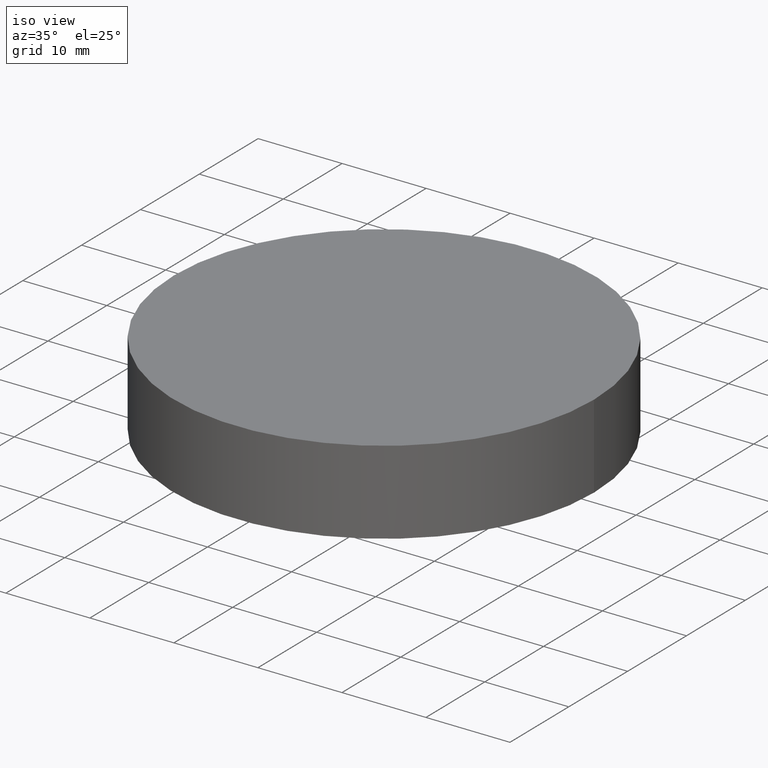
[diagram: clean part render]
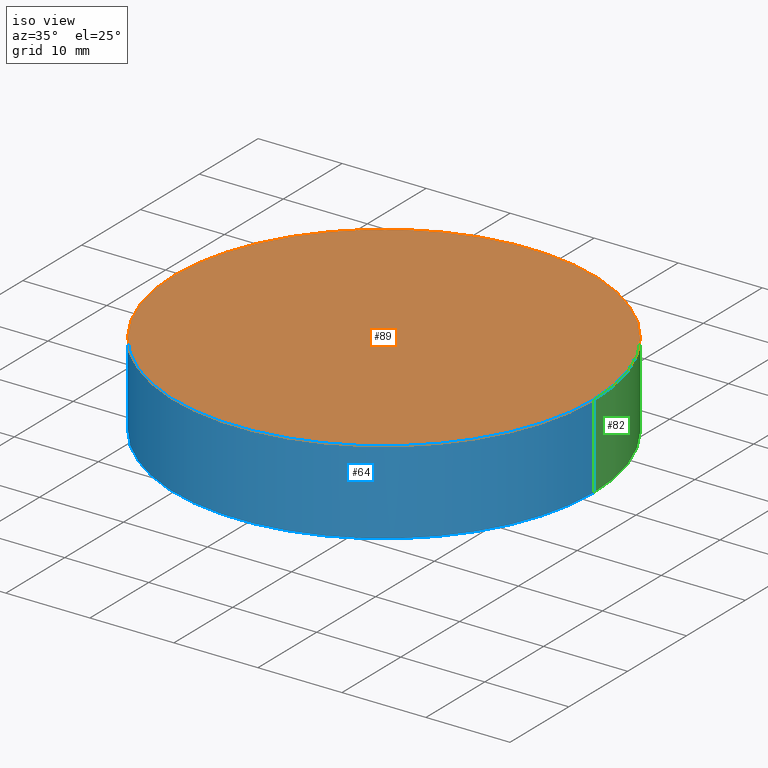
[diagram: same view with three faces highlighted in distinct colors, each labeled with its STEP entity id]
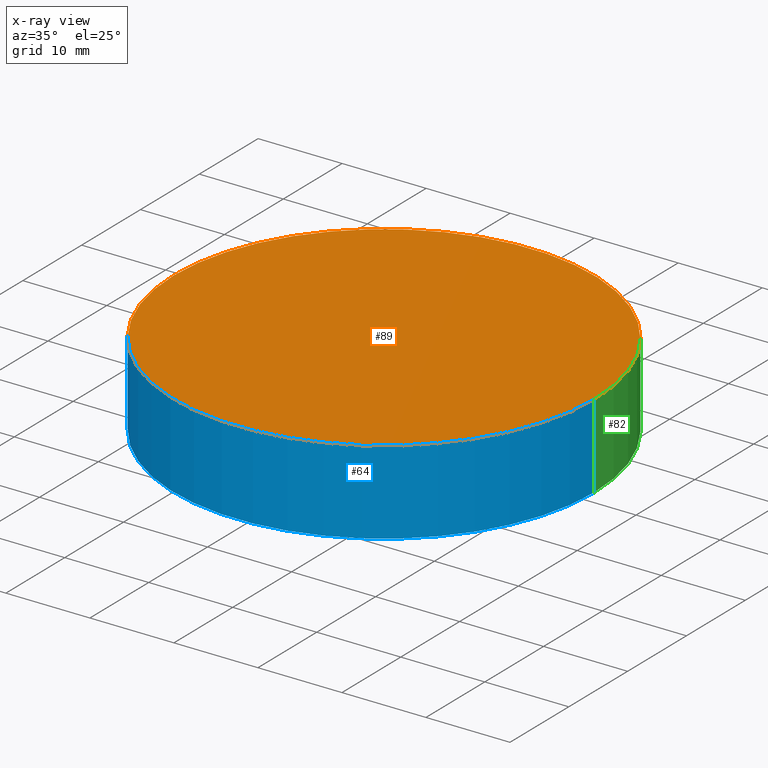
[diagram: x-ray of the same camera — body ghosted, the three highlighted faces saturated]
A machine part, iso view with three faces highlighted in distinct colors.
The next image is the same camera in x-ray (body ghosted, the three faces saturated) — at least one of them is partly hidden behind the body in this view.
Their STEP definitions:

[orange] entity #89 — the highlighted planar face has unit normal (0, 0, 1).
#6 = DIRECTION ( 'NONE',  ( 0.0000000000000000000, 0.0000000000000000000, 1.000000000000000000 ) ) ;
#16 = PLANE ( 'NONE',  #78 ) ;
#22 = CARTESIAN_POINT ( 'NONE',  ( 0.0000000000000000000, 0.0000000000000000000, 10.00000000000000000 ) ) ;
#26 = FACE_OUTER_BOUND ( 'NONE', #70, .T. ) ;
#27 = CARTESIAN_POINT ( 'NONE',  ( 25.00000000000000000, 3.061616997868383000E-015, 10.00000000000000000 ) ) ;
#28 = CIRCLE ( 'NONE', #97, 25.00000000000000000 ) ;
#35 = CARTESIAN_POINT ( 'NONE',  ( 0.0000000000000000000, 0.0000000000000000000, 10.00000000000000000 ) ) ;
#42 = CARTESIAN_POINT ( 'NONE',  ( 0.0000000000000000000, 0.0000000000000000000, 10.00000000000000000 ) ) ;
#43 = ORIENTED_EDGE ( 'NONE', *, *, #96, .T. ) ;
#47 = CARTESIAN_POINT ( 'NONE',  ( -25.00000000000000000, 0.0000000000000000000, 10.00000000000000000 ) ) ;
#51 = VERTEX_POINT ( 'NONE', #47 ) ;
#61 = VERTEX_POINT ( 'NONE', #27 ) ;
#65 = DIRECTION ( 'NONE',  ( 1.000000000000000000, 0.0000000000000000000, -0.0000000000000000000 ) ) ;
#69 = AXIS2_PLACEMENT_3D ( 'NONE', #35, #84, #80 ) ;
#70 = EDGE_LOOP ( 'NONE', ( #87, #43 ) ) ;
#74 = CIRCLE ( 'NONE', #69, 25.00000000000000000 ) ;
#78 = AXIS2_PLACEMENT_3D ( 'NONE', #42, #128, #65 ) ;
#80 = DIRECTION ( 'NONE',  ( 1.000000000000000000, 0.0000000000000000000, 0.0000000000000000000 ) ) ;
#84 = DIRECTION ( 'NONE',  ( 0.0000000000000000000, 0.0000000000000000000, 1.000000000000000000 ) ) ;
#87 = ORIENTED_EDGE ( 'NONE', *, *, #132, .T. ) ;
#89 = ADVANCED_FACE ( 'NONE', ( #26 ), #16, .T. ) ;
#96 = EDGE_CURVE ( 'NONE', #61, #51, #74, .T. ) ;
#97 = AXIS2_PLACEMENT_3D ( 'NONE', #22, #6, #106 ) ;
#106 = DIRECTION ( 'NONE',  ( 1.000000000000000000, 0.0000000000000000000, 0.0000000000000000000 ) ) ;
#128 = DIRECTION ( 'NONE',  ( 0.0000000000000000000, 0.0000000000000000000, 1.000000000000000000 ) ) ;
#132 = EDGE_CURVE ( 'NONE', #51, #61, #28, .T. ) ;

[blue] entity #64 — the highlighted cylindrical surface (partial cylindrical patch) has radius 25 mm, axis along (-0, -0, -1).
#1 = CYLINDRICAL_SURFACE ( 'NONE', #15, 25.00000000000000000 ) ;
#6 = DIRECTION ( 'NONE',  ( 0.0000000000000000000, 0.0000000000000000000, 1.000000000000000000 ) ) ;
#15 = AXIS2_PLACEMENT_3D ( 'NONE', #95, #68, #92 ) ;
#22 = CARTESIAN_POINT ( 'NONE',  ( 0.0000000000000000000, 0.0000000000000000000, 10.00000000000000000 ) ) ;
#27 = CARTESIAN_POINT ( 'NONE',  ( 25.00000000000000000, 3.061616997868383000E-015, 10.00000000000000000 ) ) ;
#28 = CIRCLE ( 'NONE', #97, 25.00000000000000000 ) ;
#32 = LINE ( 'NONE', #81, #79 ) ;
#37 = DIRECTION ( 'NONE',  ( -0.0000000000000000000, -0.0000000000000000000, -1.000000000000000000 ) ) ;
#39 = ORIENTED_EDGE ( 'NONE', *, *, #62, .T. ) ;
#47 = CARTESIAN_POINT ( 'NONE',  ( -25.00000000000000000, 0.0000000000000000000, 10.00000000000000000 ) ) ;
#50 = CARTESIAN_POINT ( 'NONE',  ( -25.00000000000000000, 0.0000000000000000000, 0.0000000000000000000 ) ) ;
#51 = VERTEX_POINT ( 'NONE', #47 ) ;
#52 = CARTESIAN_POINT ( 'NONE',  ( 0.0000000000000000000, 0.0000000000000000000, 0.0000000000000000000 ) ) ;
#57 = CARTESIAN_POINT ( 'NONE',  ( 25.00000000000000000, 3.061616997868383000E-015, 0.0000000000000000000 ) ) ;
#60 = DIRECTION ( 'NONE',  ( 0.0000000000000000000, 0.0000000000000000000, 1.000000000000000000 ) ) ;
#61 = VERTEX_POINT ( 'NONE', #27 ) ;
#62 = EDGE_CURVE ( 'NONE', #51, #111, #32, .T. ) ;
#64 = ADVANCED_FACE ( 'NONE', ( #113 ), #1, .T. ) ;
#68 = DIRECTION ( 'NONE',  ( -0.0000000000000000000, -0.0000000000000000000, -1.000000000000000000 ) ) ;
#77 = EDGE_CURVE ( 'NONE', #61, #91, #119, .T. ) ;
#79 = VECTOR ( 'NONE', #37, 1000.000000000000000 ) ;
#81 = CARTESIAN_POINT ( 'NONE',  ( -25.00000000000000000, 0.0000000000000000000, 10.00000000000000000 ) ) ;
#86 = EDGE_CURVE ( 'NONE', #111, #91, #116, .T. ) ;
#90 = DIRECTION ( 'NONE',  ( 1.000000000000000000, 0.0000000000000000000, 0.0000000000000000000 ) ) ;
#91 = VERTEX_POINT ( 'NONE', #57 ) ;
#92 = DIRECTION ( 'NONE',  ( -1.000000000000000000, 0.0000000000000000000, 0.0000000000000000000 ) ) ;
#95 = CARTESIAN_POINT ( 'NONE',  ( 0.0000000000000000000, 0.0000000000000000000, 10.00000000000000000 ) ) ;
#97 = AXIS2_PLACEMENT_3D ( 'NONE', #22, #6, #106 ) ;
#106 = DIRECTION ( 'NONE',  ( 1.000000000000000000, 0.0000000000000000000, 0.0000000000000000000 ) ) ;
#111 = VERTEX_POINT ( 'NONE', #50 ) ;
#113 = FACE_OUTER_BOUND ( 'NONE', #115, .T. ) ;
#115 = EDGE_LOOP ( 'NONE', ( #136, #140, #39, #121 ) ) ;
#116 = CIRCLE ( 'NONE', #131, 25.00000000000000000 ) ;
#119 = LINE ( 'NONE', #120, #139 ) ;
#120 = CARTESIAN_POINT ( 'NONE',  ( 25.00000000000000000, 3.061616997868383000E-015, 10.00000000000000000 ) ) ;
#121 = ORIENTED_EDGE ( 'NONE', *, *, #86, .T. ) ;
#131 = AXIS2_PLACEMENT_3D ( 'NONE', #52, #60, #90 ) ;
#132 = EDGE_CURVE ( 'NONE', #51, #61, #28, .T. ) ;
#136 = ORIENTED_EDGE ( 'NONE', *, *, #77, .F. ) ;
#137 = DIRECTION ( 'NONE',  ( -0.0000000000000000000, -0.0000000000000000000, -1.000000000000000000 ) ) ;
#139 = VECTOR ( 'NONE', #137, 1000.000000000000000 ) ;
#140 = ORIENTED_EDGE ( 'NONE', *, *, #132, .F. ) ;

[green] entity #82 — the highlighted cylindrical surface (partial cylindrical patch) has radius 25 mm, axis along (-0, -0, -1).
#5 = CIRCLE ( 'NONE', #58, 25.00000000000000000 ) ;
#23 = EDGE_CURVE ( 'NONE', #91, #111, #5, .T. ) ;
#25 = EDGE_LOOP ( 'NONE', ( #100, #75, #66, #103 ) ) ;
#27 = CARTESIAN_POINT ( 'NONE',  ( 25.00000000000000000, 3.061616997868383000E-015, 10.00000000000000000 ) ) ;
#29 = DIRECTION ( 'NONE',  ( -1.000000000000000000, 0.0000000000000000000, 0.0000000000000000000 ) ) ;
#31 = AXIS2_PLACEMENT_3D ( 'NONE', #112, #110, #29 ) ;
#32 = LINE ( 'NONE', #81, #79 ) ;
#35 = CARTESIAN_POINT ( 'NONE',  ( 0.0000000000000000000, 0.0000000000000000000, 10.00000000000000000 ) ) ;
#37 = DIRECTION ( 'NONE',  ( -0.0000000000000000000, -0.0000000000000000000, -1.000000000000000000 ) ) ;
#47 = CARTESIAN_POINT ( 'NONE',  ( -25.00000000000000000, 0.0000000000000000000, 10.00000000000000000 ) ) ;
#50 = CARTESIAN_POINT ( 'NONE',  ( -25.00000000000000000, 0.0000000000000000000, 0.0000000000000000000 ) ) ;
#51 = VERTEX_POINT ( 'NONE', #47 ) ;
#53 = FACE_OUTER_BOUND ( 'NONE', #25, .T. ) ;
#57 = CARTESIAN_POINT ( 'NONE',  ( 25.00000000000000000, 3.061616997868383000E-015, 0.0000000000000000000 ) ) ;
#58 = AXIS2_PLACEMENT_3D ( 'NONE', #138, #118, #125 ) ;
#61 = VERTEX_POINT ( 'NONE', #27 ) ;
#62 = EDGE_CURVE ( 'NONE', #51, #111, #32, .T. ) ;
#66 = ORIENTED_EDGE ( 'NONE', *, *, #23, .T. ) ;
#69 = AXIS2_PLACEMENT_3D ( 'NONE', #35, #84, #80 ) ;
#71 = CYLINDRICAL_SURFACE ( 'NONE', #31, 25.00000000000000000 ) ;
#74 = CIRCLE ( 'NONE', #69, 25.00000000000000000 ) ;
#75 = ORIENTED_EDGE ( 'NONE', *, *, #77, .T. ) ;
#77 = EDGE_CURVE ( 'NONE', #61, #91, #119, .T. ) ;
#79 = VECTOR ( 'NONE', #37, 1000.000000000000000 ) ;
#80 = DIRECTION ( 'NONE',  ( 1.000000000000000000, 0.0000000000000000000, 0.0000000000000000000 ) ) ;
#81 = CARTESIAN_POINT ( 'NONE',  ( -25.00000000000000000, 0.0000000000000000000, 10.00000000000000000 ) ) ;
#82 = ADVANCED_FACE ( 'NONE', ( #53 ), #71, .T. ) ;
#84 = DIRECTION ( 'NONE',  ( 0.0000000000000000000, 0.0000000000000000000, 1.000000000000000000 ) ) ;
#91 = VERTEX_POINT ( 'NONE', #57 ) ;
#96 = EDGE_CURVE ( 'NONE', #61, #51, #74, .T. ) ;
#100 = ORIENTED_EDGE ( 'NONE', *, *, #96, .F. ) ;
#103 = ORIENTED_EDGE ( 'NONE', *, *, #62, .F. ) ;
#110 = DIRECTION ( 'NONE',  ( -0.0000000000000000000, -0.0000000000000000000, -1.000000000000000000 ) ) ;
#111 = VERTEX_POINT ( 'NONE', #50 ) ;
#112 = CARTESIAN_POINT ( 'NONE',  ( 0.0000000000000000000, 0.0000000000000000000, 10.00000000000000000 ) ) ;
#118 = DIRECTION ( 'NONE',  ( 0.0000000000000000000, 0.0000000000000000000, 1.000000000000000000 ) ) ;
#119 = LINE ( 'NONE', #120, #139 ) ;
#120 = CARTESIAN_POINT ( 'NONE',  ( 25.00000000000000000, 3.061616997868383000E-015, 10.00000000000000000 ) ) ;
#125 = DIRECTION ( 'NONE',  ( 1.000000000000000000, 0.0000000000000000000, 0.0000000000000000000 ) ) ;
#137 = DIRECTION ( 'NONE',  ( -0.0000000000000000000, -0.0000000000000000000, -1.000000000000000000 ) ) ;
#138 = CARTESIAN_POINT ( 'NONE',  ( 0.0000000000000000000, 0.0000000000000000000, 0.0000000000000000000 ) ) ;
#139 = VECTOR ( 'NONE', #137, 1000.000000000000000 ) ;